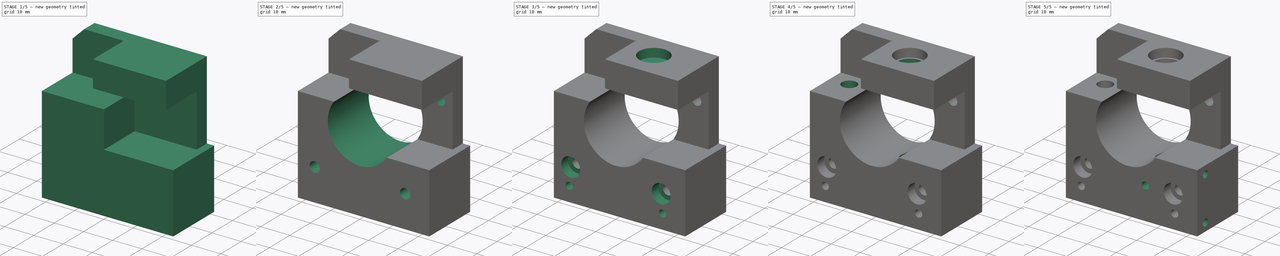
[diagram: build sequence overview — one tinted view per stage of 5, left to right]
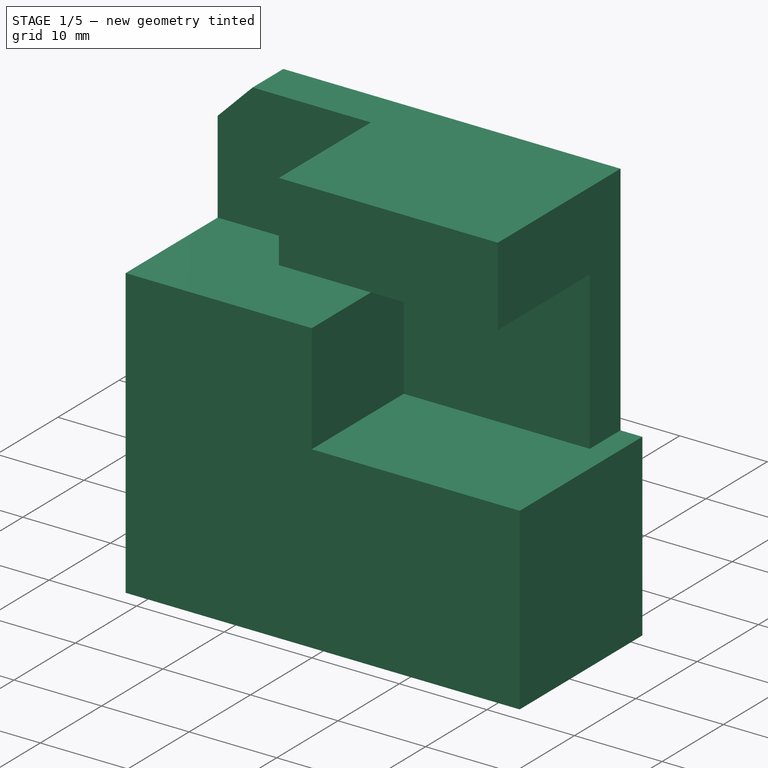
[diagram: stage 1 of 5 — iso view after this stage's code; geometry added in this stage tinted green]
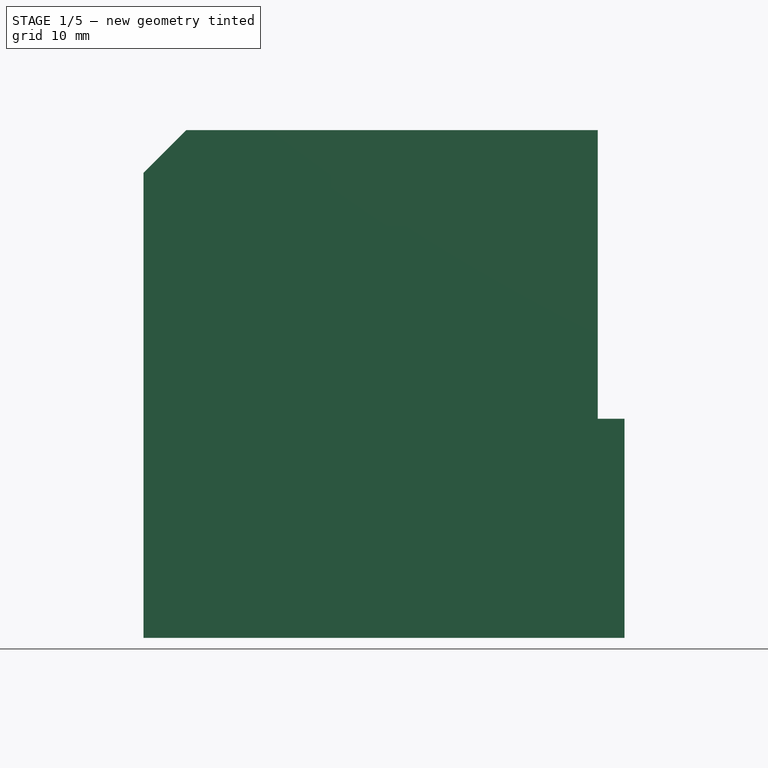
[diagram: stage 1 of 5 — front view after this stage's code; geometry added in this stage tinted green]
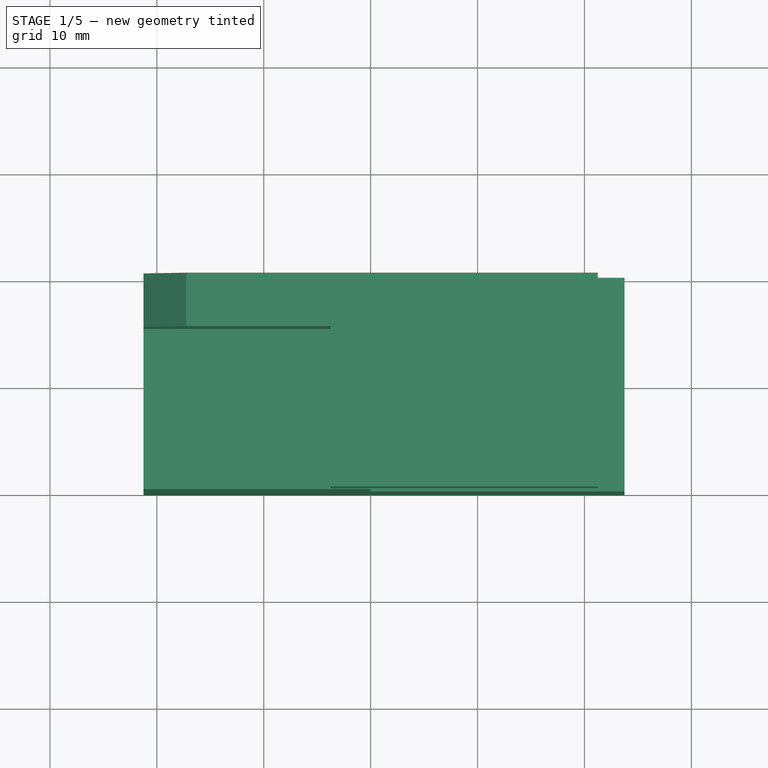
[diagram: stage 1 of 5 — top view after this stage's code; geometry added in this stage tinted green]
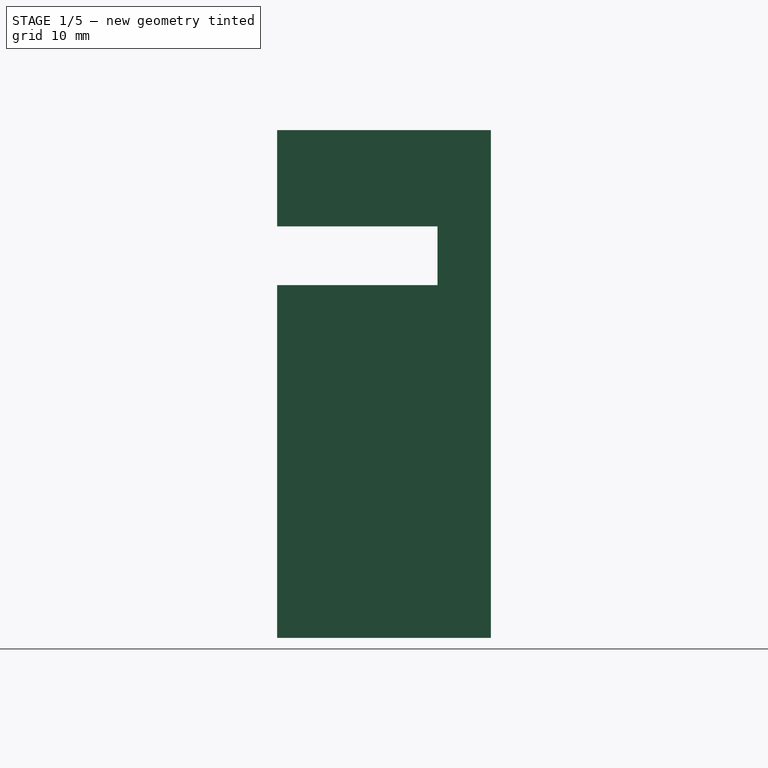
[diagram: stage 1 of 5 — right view after this stage's code; geometry added in this stage tinted green]
FCSTD DOCUMENT  (FreeCAD 0.14R3702 (Git))
Label: Extruder-body
License: CC-BY 3.0
LicenseURL: http://creativecommons.org/licenses/by/3.0/
objects: Sketcher::SketchObject×15, PartDesign::Pocket×14, PartDesign::Pad×1, Part::Feature×1
note: 46 computed .brp shape members not serialized (recipe doc carries the construction recipe); baked Part::Feature solids carry a one-line shape summary decoded from their .brp

FEATURE [Sketcher::SketchObject] Sketch  label="main-body-sketch"
  Placement = pos=(0,0,0) rot=(1,0,0;1.5708rad)
  sketch-geometry (6):
    g0: LineSegment StartX=23.7483 StartY=0 StartZ=0 EndX=-21.2517 EndY=0 EndZ=0
    g1: LineSegment StartX=-21.2517 StartY=0 StartZ=0 EndX=-21.2517 EndY=43.5 EndZ=0
    g2: LineSegment StartX=-21.2517 StartY=43.5 StartZ=0 EndX=-17.2517 EndY=47.5 EndZ=0
    g3: LineSegment StartX=-17.2517 StartY=47.5 StartZ=0 EndX=23.7483 EndY=47.5 EndZ=0
    g4: LineSegment StartX=23.7483 StartY=47.5 StartZ=0 EndX=23.7483 EndY=0 EndZ=0
    g5: LineSegment [constr] StartX=-21.2517 StartY=43.5 StartZ=0 EndX=-17.2517 EndY=43.5 EndZ=0
  constraints (17):
    c: Horizontal(g0)
    c: Coincident(g0,g1)
    c: Vertical(g1)
    c: Coincident(g1,g2)
    c: Coincident(g2,g3)
    c: Horizontal(g3)
    c: Coincident(g3,g4)
    c: Coincident(g4,g0)
    c: Vertical(g4)
    c: PointOnObject(g0,g-1)
    c: Horizontal(g5)
    c: Coincident(g5,g1)
    c: DistanceX(g5) = 4
    c: Angle(g5,g2) = 0.785398
    c: DistanceY(g5,g2) = 4
    c: DistanceY(g2,g0) = -47.5
    c: DistanceX(g0) = -45
FEATURE [PartDesign::Pad] Pad  label="main-body"
  Length = 20
  Length2 = 100
  Placement = pos=(0,0,0) rot=(1,0,0;1.5708rad)
  Sketch = -> Sketch
  Type = 0
FEATURE [Sketcher::SketchObject] Sketch001  label="cutout-1-sketch"
  ExternalGeometry = -> [Pad]
  Placement = pos=(0,-20,0) rot=(1,0,0;1.5708rad)
  Support = -> Pad [Face7]
  sketch-geometry (4):
    g0: LineSegment StartX=21.2483 StartY=47.5 StartZ=0 EndX=23.7483 EndY=47.5 EndZ=0
    g1: LineSegment StartX=23.7483 StartY=47.5 StartZ=0 EndX=23.7483 EndY=20.5 EndZ=0
    g2: LineSegment StartX=23.7483 StartY=20.5 StartZ=0 EndX=21.2483 EndY=20.5 EndZ=0
    g3: LineSegment StartX=21.2483 StartY=20.5 StartZ=0 EndX=21.2483 EndY=47.5 EndZ=0
  constraints (11):
    c: Coincident(g0,g1)
    c: Coincident(g1,g2)
    c: Coincident(g2,g3)
    c: Coincident(g3,g0)
    c: Horizontal(g0)
    c: Horizontal(g2)
    c: Vertical(g1)
    c: Vertical(g3)
    c: Coincident(g0,g-4)
    c: DistanceY(g3) = 27
    c: DistanceX(g2) = -2.5
FEATURE [PartDesign::Pocket] Pocket  label="cutout-1"
  Length = 5
  Placement = pos=(0,0,0) rot=(1,0,0;1.5708rad)
  Sketch = -> Sketch001
  Type = 1
FEATURE [Sketcher::SketchObject] Sketch002  label="cutout-2-sketch"
  ExternalGeometry = -> [Pocket]
  Placement = pos=(0,-20,0) rot=(1,0,0;1.5708rad)
  Support = -> Pocket [Face5]
  sketch-geometry (8):
    g0: LineSegment StartX=21.2483 StartY=20.5 StartZ=0 EndX=0 EndY=20.5 EndZ=0
    g1: LineSegment StartX=0 StartY=20.5 StartZ=0 EndX=0 EndY=33 EndZ=0
    g2: LineSegment StartX=0 StartY=33 StartZ=0 EndX=-21.2517 EndY=33 EndZ=0
    g3: LineSegment StartX=-21.2517 StartY=33 StartZ=0 EndX=-21.2517 EndY=47.5 EndZ=0
    g4: LineSegment StartX=-21.2517 StartY=47.5 StartZ=0 EndX=-3.75167 EndY=47.5 EndZ=0
    g5: LineSegment StartX=-3.75167 StartY=47.5 StartZ=0 EndX=-3.75167 EndY=38.5 EndZ=0
    g6: LineSegment StartX=-3.75167 StartY=38.5 StartZ=0 EndX=21.2483 EndY=38.5 EndZ=0
    g7: LineSegment StartX=21.2483 StartY=38.5 StartZ=0 EndX=21.2483 EndY=20.5 EndZ=0
  constraints (23):
    c: Horizontal(g0)
    c: Coincident(g0,g1)
    c: Vertical(g1)
    c: Coincident(g1,g2)
    c: Horizontal(g2)
    c: Coincident(g2,g3)
    c: Vertical(g3)
    c: Coincident(g3,g4)
    c: Horizontal(g4)
    c: Coincident(g4,g5)
    c: Vertical(g5)
    c: Coincident(g5,g6)
    c: Horizontal(g6)
    c: Coincident(g6,g7)
    c: Coincident(g7,g0)
    c: Vertical(g7)
    c: Coincident(g0,g-5)
    c: PointOnObject(g0,g-2)
    c: PointOnObject(g3,g-4)
    c: PointOnObject(g3,g-3)
    c: DistanceY(g3) = 14.5
    c: DistanceY(g5) = -9
    c: DistanceX(g6) = 25
FEATURE [PartDesign::Pocket] Pocket001  label="cutout-2"
  Length = 15
  Placement = pos=(0,0,0) rot=(1,0,0;1.5708rad)
  Sketch = -> Sketch002
  Type = 0
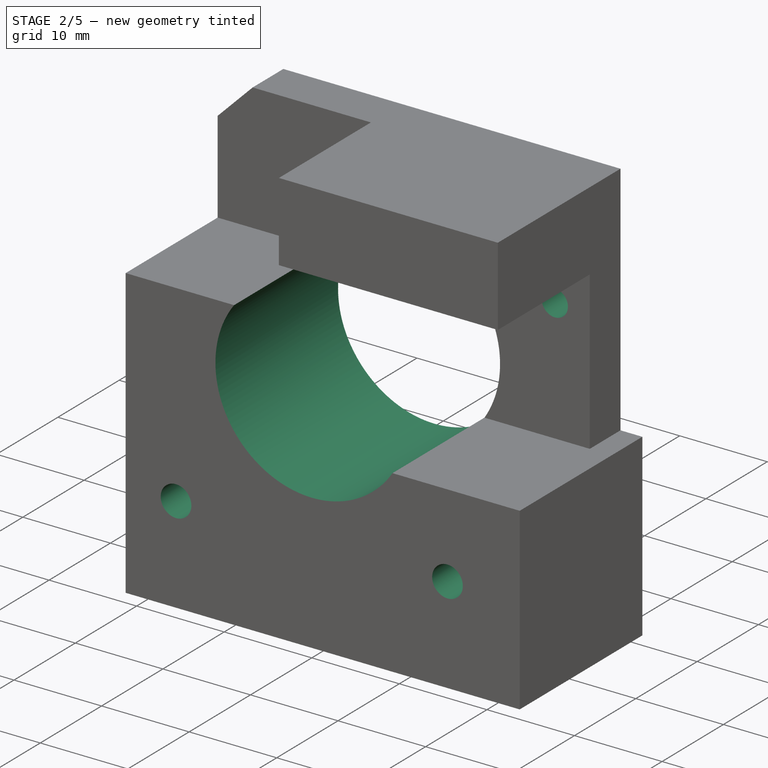
[diagram: stage 2 of 5 — iso view after this stage's code; geometry added in this stage tinted green]
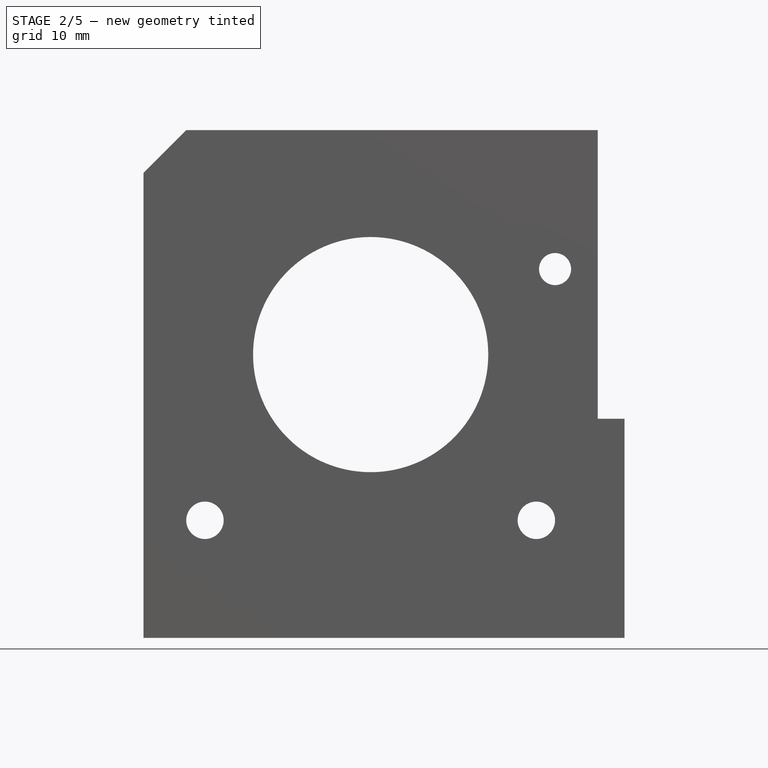
[diagram: stage 2 of 5 — front view after this stage's code; geometry added in this stage tinted green]
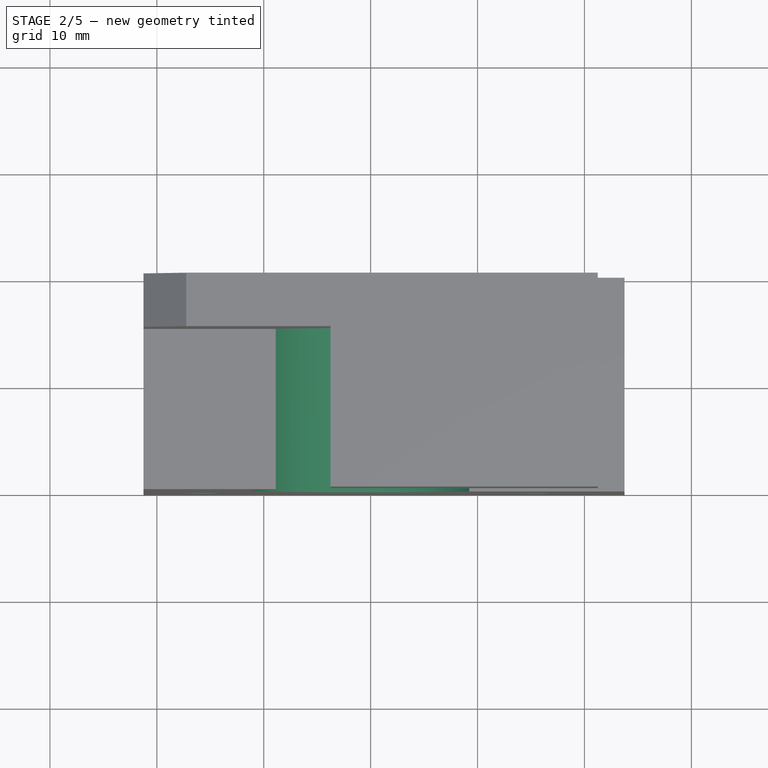
[diagram: stage 2 of 5 — top view after this stage's code; geometry added in this stage tinted green]
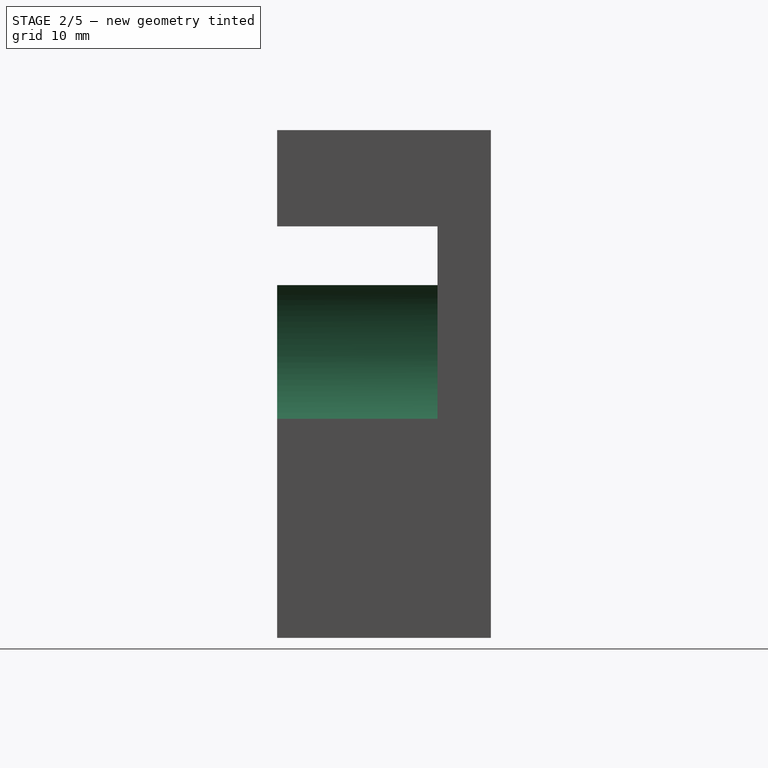
[diagram: stage 2 of 5 — right view after this stage's code; geometry added in this stage tinted green]
FEATURE [Sketcher::SketchObject] Sketch003  label="cutout-3-motor-shaft-sketch"
  Placement = pos=(0,0,0) rot=(-1,0,0;1.5708rad)
  Support = -> Pocket001 [Face4]
  sketch-geometry (1):
    g0: Circle CenterX=0 CenterY=-26.5 CenterZ=0 NormalX=0 NormalY=0 NormalZ=1 Radius=11
  constraints (3):
    c: Radius(g0) = 11
    c: PointOnObject(g0,g-2)
    c: DistanceY(g-1,g0) = -26.5
FEATURE [PartDesign::Pocket] Pocket002  label="cutout-3-motor-shaft"
  Length = 5
  Placement = pos=(0,0,0) rot=(1,0,0;1.5708rad)
  Sketch = -> Sketch003
  Type = 1
FEATURE [Sketcher::SketchObject] Sketch004  label="drill-lever-sketch"
  ExternalGeometry = -> [Pocket002]
  Placement = pos=(0,0,0) rot=(-1,0,0;1.5708rad)
  Support = -> Pocket002 [Face4]
  sketch-geometry (1):
    g0: Circle CenterX=17.25 CenterY=-34.5 CenterZ=0 NormalX=0 NormalY=0 NormalZ=1 Radius=1.5
  constraints (3):
    c: DistanceX(g-1,g0) = 17.25
    c: DistanceY(g-1,g0) = -34.5
    c: Radius(g0) = 1.5
FEATURE [PartDesign::Pocket] Pocket003  label="drill-lever"
  Length = 5
  Placement = pos=(0,0,0) rot=(1,0,0;1.5708rad)
  Sketch = -> Sketch004
  Type = 1
FEATURE [Sketcher::SketchObject] Sketch005  label="motor-drills-sketch"
  Placement = pos=(0,0,0) rot=(-1,0,0;1.5708rad)
  Support = -> Pocket003 [Face4]
  sketch-geometry (2):
    g0: Circle CenterX=-15.5 CenterY=-11 CenterZ=0 NormalX=0 NormalY=0 NormalZ=1 Radius=1.75
    g1: Circle CenterX=15.5 CenterY=-11 CenterZ=0 NormalX=0 NormalY=0 NormalZ=1 Radius=1.75
  constraints (5):
    c: DistanceY(g-1,g0) = -11
    c: Equal(g1,g0)
    c: Symmetric(g1,g0,g-2)
    c: DistanceX(g0,g1) = 31
    c: Radius(g0) = 1.75
FEATURE [PartDesign::Pocket] Pocket004  label="motor-drills"
  Length = 5
  Placement = pos=(0,0,0) rot=(1,0,0;1.5708rad)
  Sketch = -> Sketch005
  Type = 1
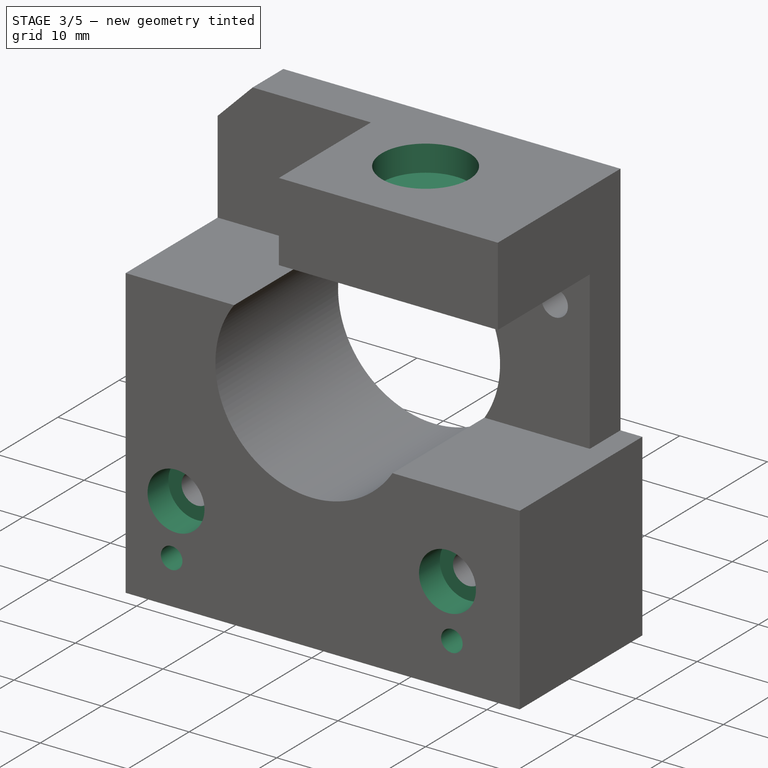
[diagram: stage 3 of 5 — iso view after this stage's code; geometry added in this stage tinted green]
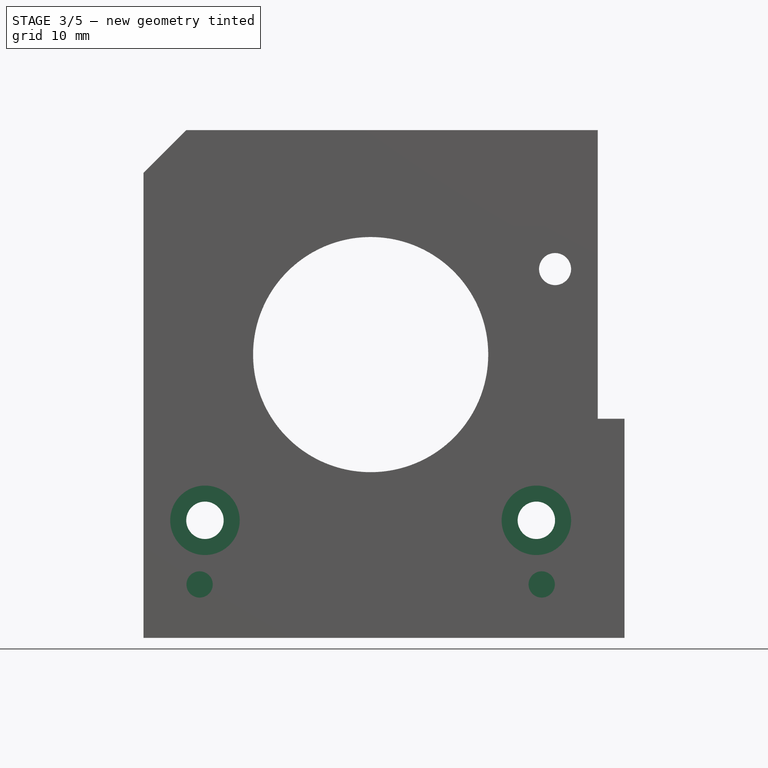
[diagram: stage 3 of 5 — front view after this stage's code; geometry added in this stage tinted green]
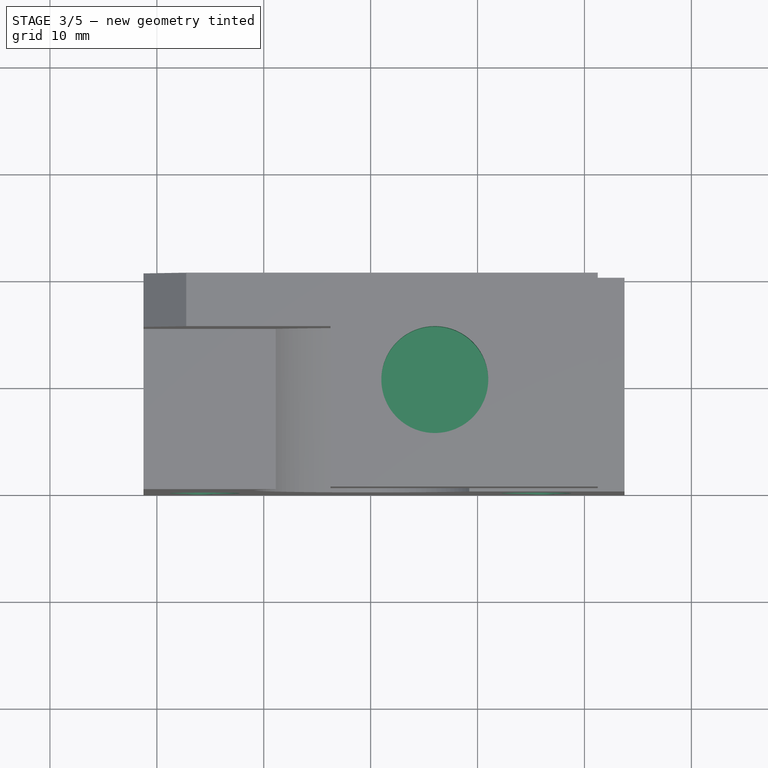
[diagram: stage 3 of 5 — top view after this stage's code; geometry added in this stage tinted green]
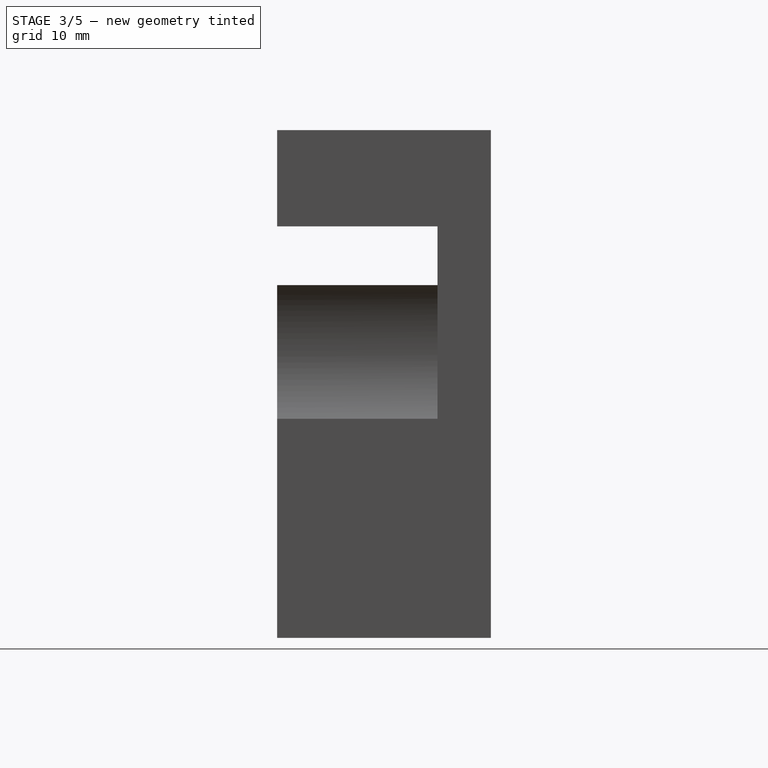
[diagram: stage 3 of 5 — right view after this stage's code; geometry added in this stage tinted green]
FEATURE [Sketcher::SketchObject] Sketch006  label="motor-drills-2-sketch"
  ExternalGeometry = -> [Pocket004]
  Placement = pos=(0,-20,0) rot=(1,0,0;1.5708rad)
  Support = -> Pocket004 [Face5]
  sketch-geometry (2):
    g0: Circle CenterX=-15.5 CenterY=11 CenterZ=0 NormalX=0 NormalY=0 NormalZ=1 Radius=3.25
    g1: Circle CenterX=15.5 CenterY=11 CenterZ=0 NormalX=0 NormalY=0 NormalZ=1 Radius=3.25
  constraints (4):
    c: Coincident(g0,g-3)
    c: Equal(g1,g0)
    c: Symmetric(g0,g1,g-2)
    c: Radius(g0) = 3.25
FEATURE [PartDesign::Pocket] Pocket005  label="motor-drills-2"
  Length = 3.4
  Placement = pos=(0,0,0) rot=(1,0,0;1.5708rad)
  Sketch = -> Sketch006
  Type = 0
FEATURE [Sketcher::SketchObject] Sketch007  label="fan-drills-sketch"
  Placement = pos=(0,-20,0) rot=(1,0,0;1.5708rad)
  Support = -> Pocket005 [Face5]
  sketch-geometry (2):
    g0: Circle CenterX=-16 CenterY=5 CenterZ=0 NormalX=0 NormalY=0 NormalZ=1 Radius=1.23
    g1: Circle CenterX=16 CenterY=5 CenterZ=0 NormalX=0 NormalY=0 NormalZ=1 Radius=1.23
  constraints (5):
    c: Symmetric(g0,g1,g-2)
    c: DistanceY(g-1,g0) = 5
    c: DistanceX(g0,g1) = 32
    c: Radius(g0) = 1.23
    c: Equal(g1,g0)
FEATURE [PartDesign::Pocket] Pocket006  label="fan-drills"
  Length = 6
  Placement = pos=(0,0,0) rot=(1,0,0;1.5708rad)
  Sketch = -> Sketch007
  Type = 0
FEATURE [Sketcher::SketchObject] Sketch008  label="top-drill-1-sketch"
  Placement = pos=(0,0,47.5) rot=(0,0,1;3.14159rad)
  Support = -> Pocket006 [Face11]
  sketch-geometry (1):
    g0: Circle CenterX=-6 CenterY=10 CenterZ=0 NormalX=0 NormalY=0 NormalZ=1 Radius=5
  constraints (3):
    c: Radius(g0) = 5
    c: DistanceY(g-1,g0) = 10
    c: DistanceX(g-1,g0) = -6
FEATURE [PartDesign::Pocket] Pocket007  label="top-drill-1"
  Length = 3
  Placement = pos=(0,0,0) rot=(1,0,0;1.5708rad)
  Sketch = -> Sketch008
  Type = 0
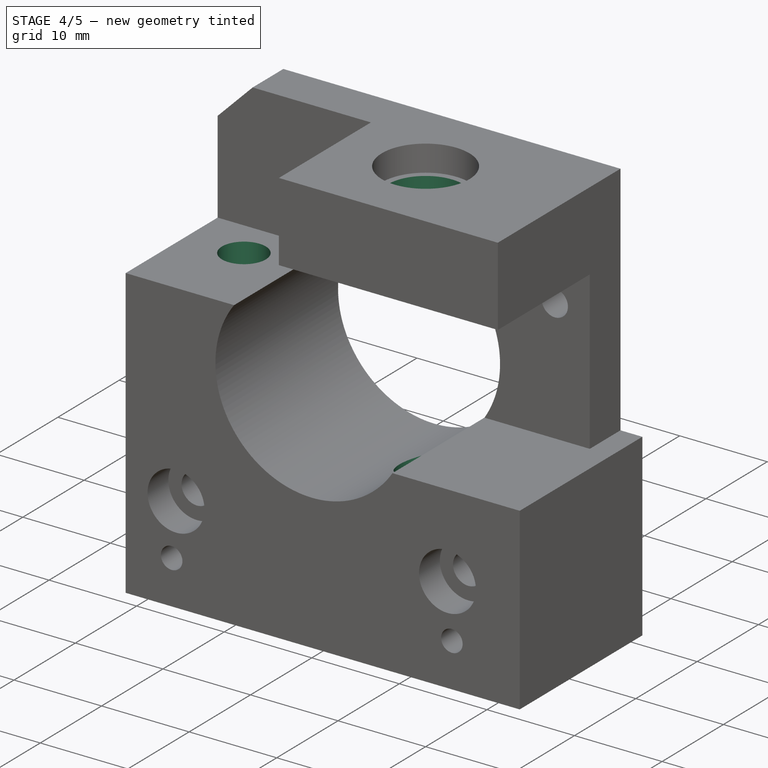
[diagram: stage 4 of 5 — iso view after this stage's code; geometry added in this stage tinted green]
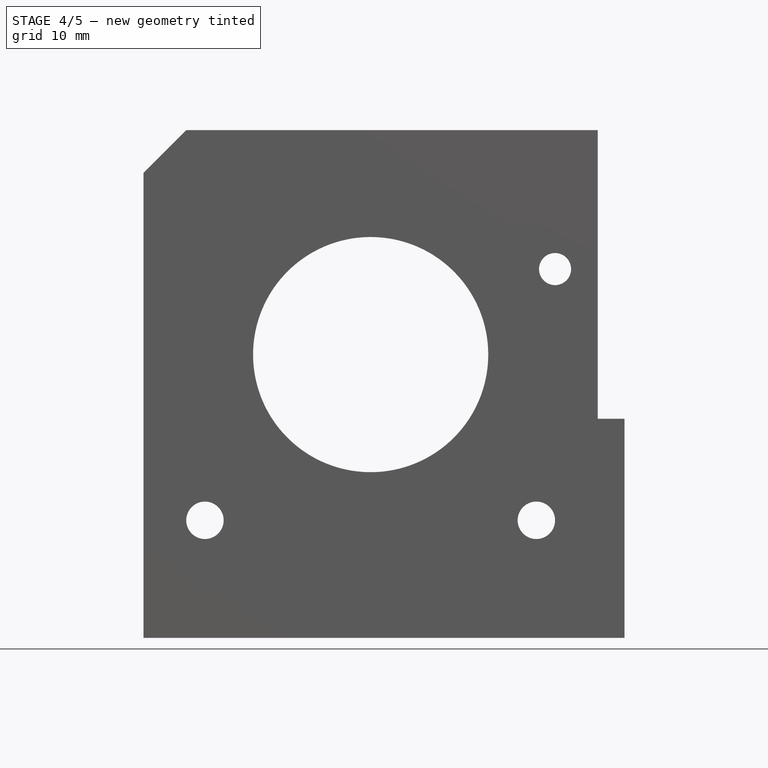
[diagram: stage 4 of 5 — front view after this stage's code; geometry added in this stage tinted green]
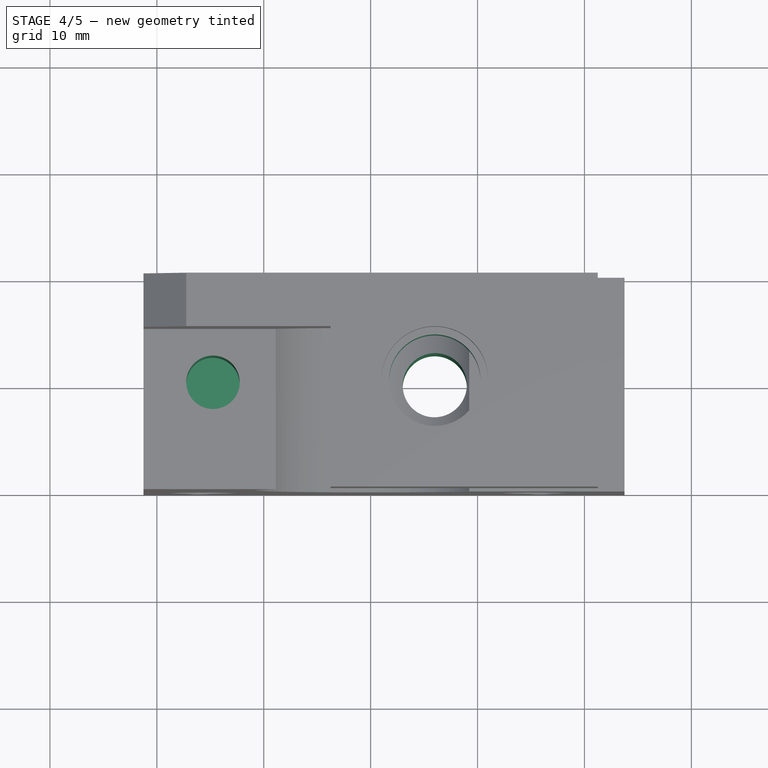
[diagram: stage 4 of 5 — top view after this stage's code; geometry added in this stage tinted green]
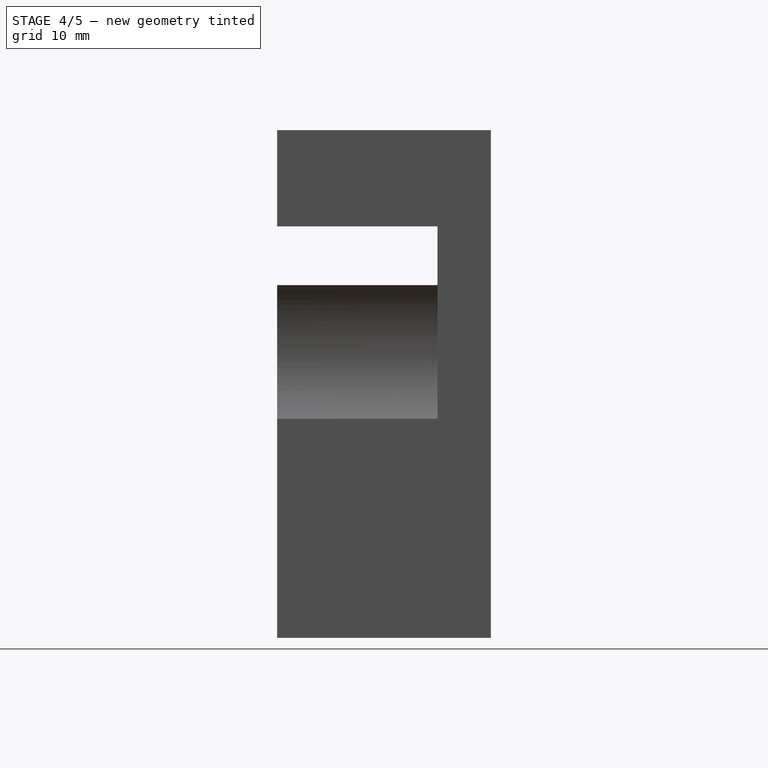
[diagram: stage 4 of 5 — right view after this stage's code; geometry added in this stage tinted green]
FEATURE [Sketcher::SketchObject] Sketch009  label="top-drill-2-sketch"
  ExternalGeometry = -> [Pocket007]
  Placement = pos=(0,0,44.5) rot=(0,0,1;3.14159rad)
  Support = -> Pocket007 [Face28]
  sketch-geometry (1):
    g0: Circle CenterX=-6 CenterY=10 CenterZ=0 NormalX=0 NormalY=0 NormalZ=1 Radius=4.28
  constraints (2):
    c: Radius(g0) = 4.28
    c: Coincident(g0,g-3)
FEATURE [PartDesign::Pocket] Pocket008  label="top-drill-2"
  Length = 7
  Placement = pos=(0,0,0) rot=(1,0,0;1.5708rad)
  Sketch = -> Sketch009
  Type = 0
FEATURE [Sketcher::SketchObject] Sketch010  label="drill-spring-sketch"
  Placement = pos=(0,0,33) rot=(0,0,1;3.14159rad)
  Support = -> Pocket008 [Face9]
  sketch-geometry (1):
    g0: Circle CenterX=14.75 CenterY=10 CenterZ=0 NormalX=0 NormalY=0 NormalZ=1 Radius=2.5
  constraints (3):
    c: Radius(g0) = 2.5
    c: DistanceX(g-1,g0) = 14.75
    c: DistanceY(g-1,g0) = 10
FEATURE [PartDesign::Pocket] Pocket009  label="drill-spring"
  Length = 12.5
  Placement = pos=(0,0,0) rot=(1,0,0;1.5708rad)
  Sketch = -> Sketch010
  Type = 0
FEATURE [Sketcher::SketchObject] Sketch011  label="hotend-drill-sketch"
  Placement = pos=(0,0,0) rot=(1,0,0;3.14159rad)
  Support = -> Pocket009 [Face1]
  sketch-geometry (1):
    g0: Circle CenterX=6 CenterY=10 CenterZ=0 NormalX=0 NormalY=0 NormalZ=1 Radius=3
  constraints (3):
    c: Radius(g0) = 3
    c: DistanceY(g-1,g0) = 10
    c: DistanceX(g-1,g0) = 6
FEATURE [PartDesign::Pocket] Pocket010  label="hotend-drill"
  Length = 21
  Placement = pos=(0,0,0) rot=(1,0,0;1.5708rad)
  Sketch = -> Sketch011
  Type = 0
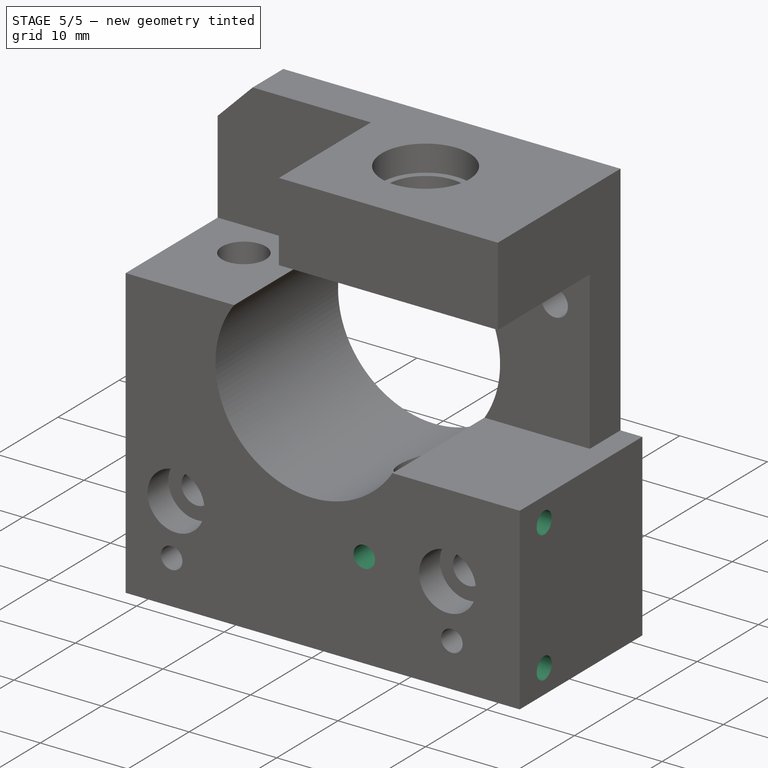
[diagram: stage 5 of 5 — iso view after this stage's code; geometry added in this stage tinted green]
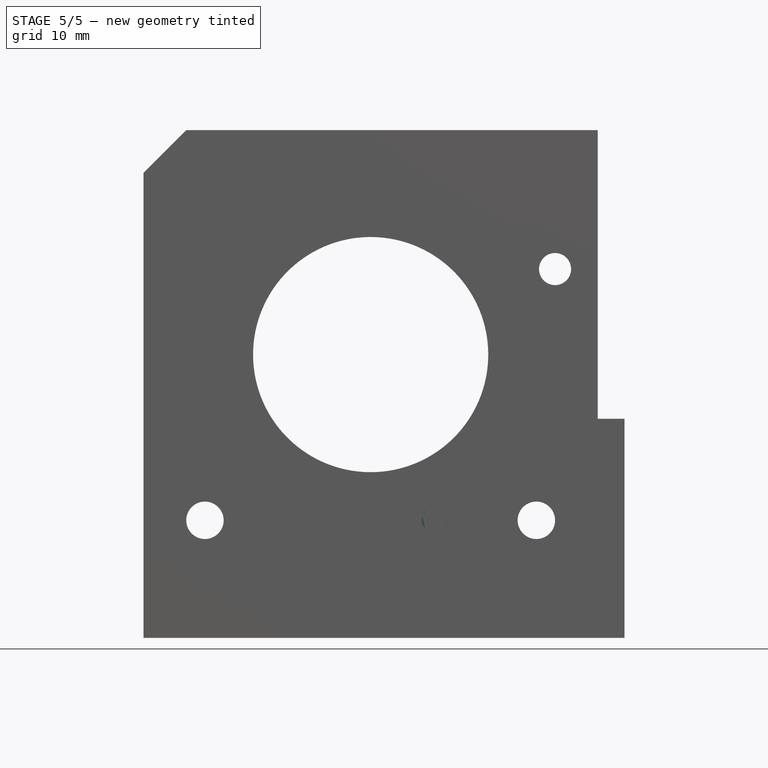
[diagram: stage 5 of 5 — front view after this stage's code; geometry added in this stage tinted green]
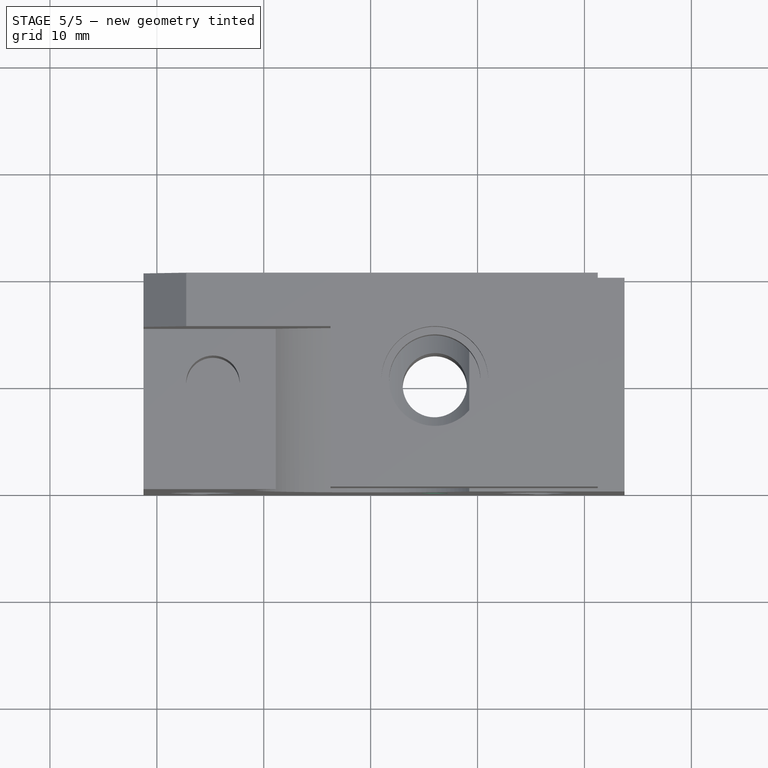
[diagram: stage 5 of 5 — top view after this stage's code; geometry added in this stage tinted green]
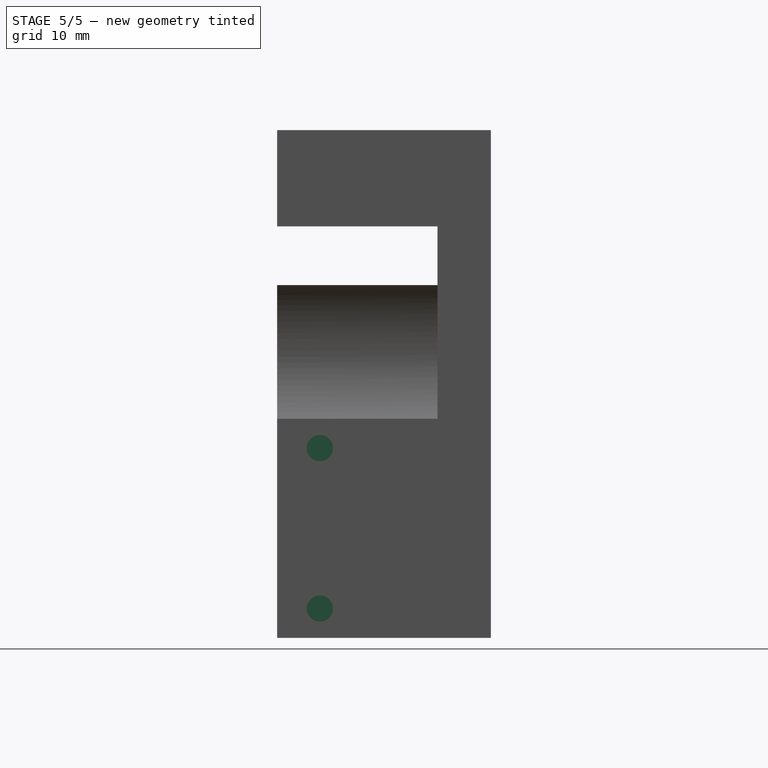
[diagram: stage 5 of 5 — right view after this stage's code; geometry added in this stage tinted green]
FEATURE [Sketcher::SketchObject] Sketch012  label="x-carriage-drills-sketch"
  Placement = pos=(0,0,0) rot=(1,0,0;3.14159rad)
  Support = -> Pocket010 [Face1]
  sketch-geometry (2):
    g0: Circle CenterX=-17.5 CenterY=10 CenterZ=0 NormalX=0 NormalY=0 NormalZ=1 Radius=1.62
    g1: Circle CenterX=17.5 CenterY=10 CenterZ=0 NormalX=0 NormalY=0 NormalZ=1 Radius=1.62
  constraints (5):
    c: DistanceY(g-1,g0) = 10
    c: Equal(g1,g0)
    c: Symmetric(g1,g0,g-2)
    c: DistanceX(g0,g1) = 35
    c: Radius(g0) = 1.62
FEATURE [PartDesign::Pocket] Pocket011  label="x-carriage-drills"
  Length = 8
  Placement = pos=(0,0,0) rot=(1,0,0;1.5708rad)
  Sketch = -> Sketch012
  Type = 0
FEATURE [Sketcher::SketchObject] Sketch013  label="hotend-setscrew-drill-sketch"
  Placement = pos=(0,-20,0) rot=(1,0,0;1.5708rad)
  Support = -> Pocket011 [Face4]
  sketch-geometry (1):
    g0: Circle CenterX=6 CenterY=11 CenterZ=0 NormalX=0 NormalY=0 NormalZ=1 Radius=1.23
  constraints (3):
    c: DistanceY(g-1,g0) = 11
    c: Radius(g0) = 1.23
    c: DistanceX(g-1,g0) = 6
FEATURE [PartDesign::Pocket] Pocket012  label="hotend-setscrew-drill"
  Length = 7
  Placement = pos=(0,0,0) rot=(1,0,0;1.5708rad)
  Sketch = -> Sketch013
  Type = 0
FEATURE [Sketcher::SketchObject] Sketch014  label="blower-drills-sketch"
  Placement = pos=(23.7483,0,0) rot=(0.707107,0,0.707107;3.14159rad)
  Support = -> Pocket012 [Face2]
  sketch-geometry (3):
    g0: Circle CenterX=2.75 CenterY=16 CenterZ=0 NormalX=0 NormalY=0 NormalZ=1 Radius=1.23
    g1: Circle CenterX=17.75 CenterY=16 CenterZ=0 NormalX=0 NormalY=0 NormalZ=1 Radius=1.23
    g2: LineSegment [constr] StartX=2.75 StartY=16 StartZ=0 EndX=17.75 EndY=16 EndZ=0
  constraints (8):
    c: DistanceY(g-1,g0) = 16
    c: DistanceX(g-1,g0) = 2.75
    c: Radius(g0) = 1.23
    c: DistanceX(g1,g0) = -15
    c: Horizontal(g2)
    c: Coincident(g2,g0)
    c: Coincident(g2,g1)
    c: Equal(g0,g1)
FEATURE [PartDesign::Pocket] Pocket013  label="blower-drills"
  Length = 6
  Placement = pos=(0,0,0) rot=(1,0,0;1.5708rad)
  Sketch = -> Sketch014
  Type = 0
FEATURE [Part::Feature] Pocket013001  label="extruder-body-final"
  Placement = pos=(0,0,0) rot=(1,0,0;1.5708rad)
  shape: bbox 45 x 20 x 47.5 mm, 42 faces (baked)
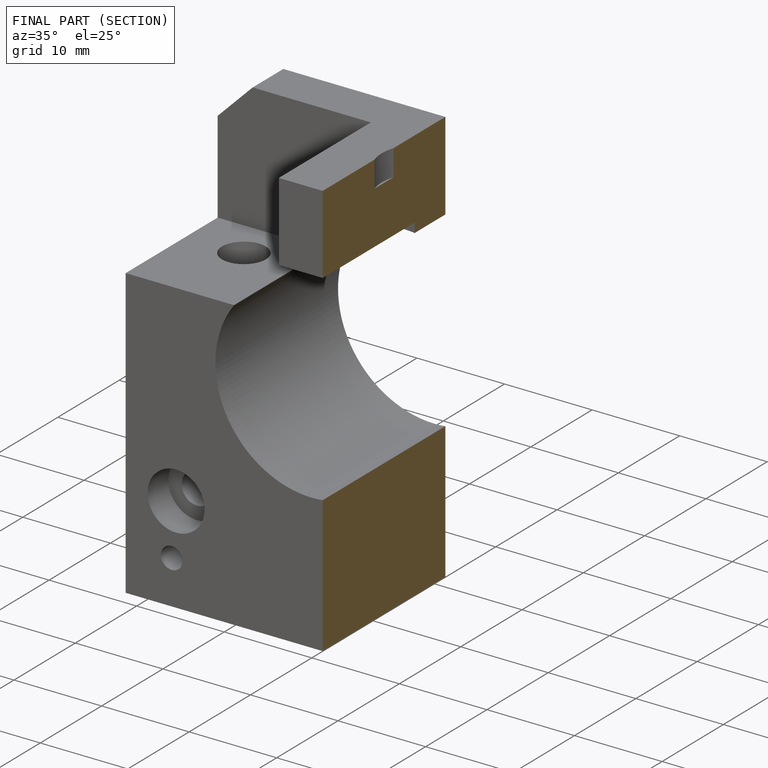
[diagram: finished part — half-section view (interior)]
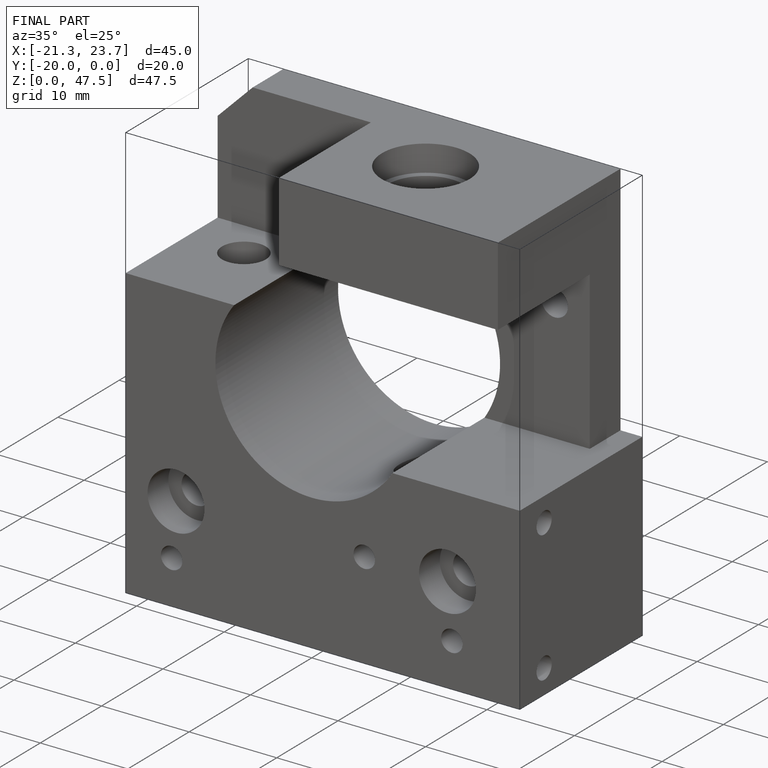
[diagram: finished part — iso view with bounding-box wireframe]
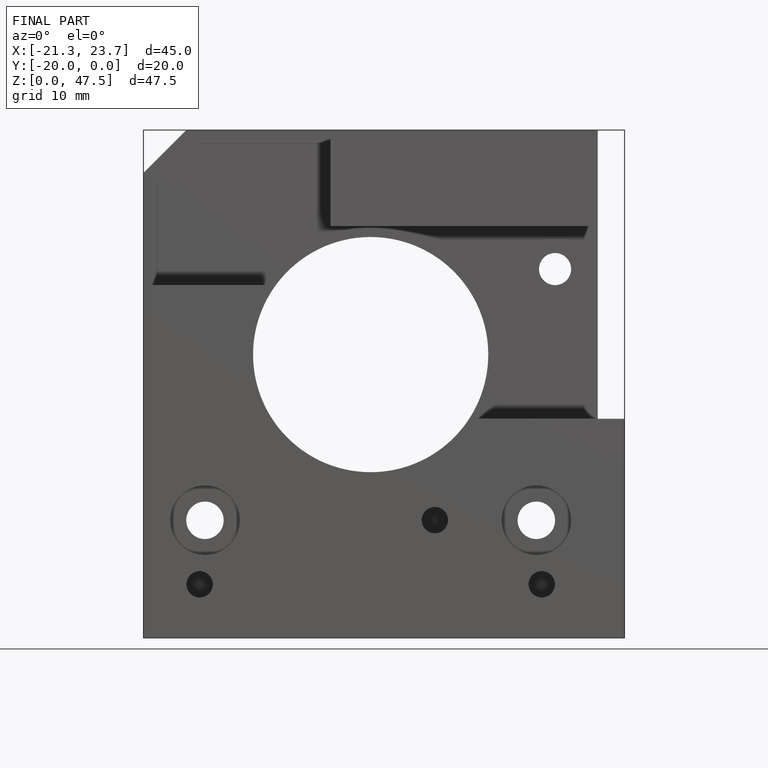
[diagram: finished part — front view with bounding-box wireframe]
